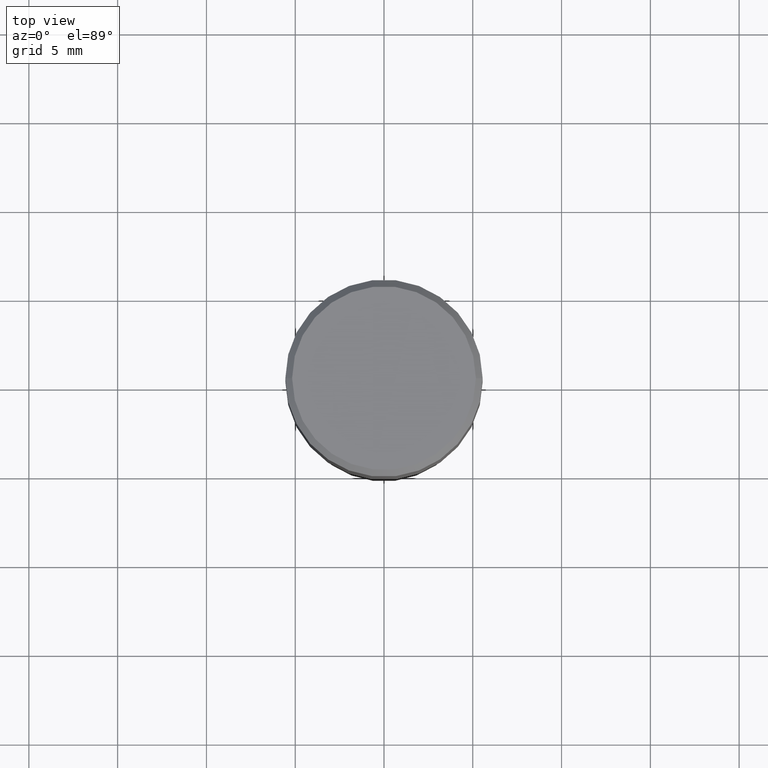
[diagram: clean part render]
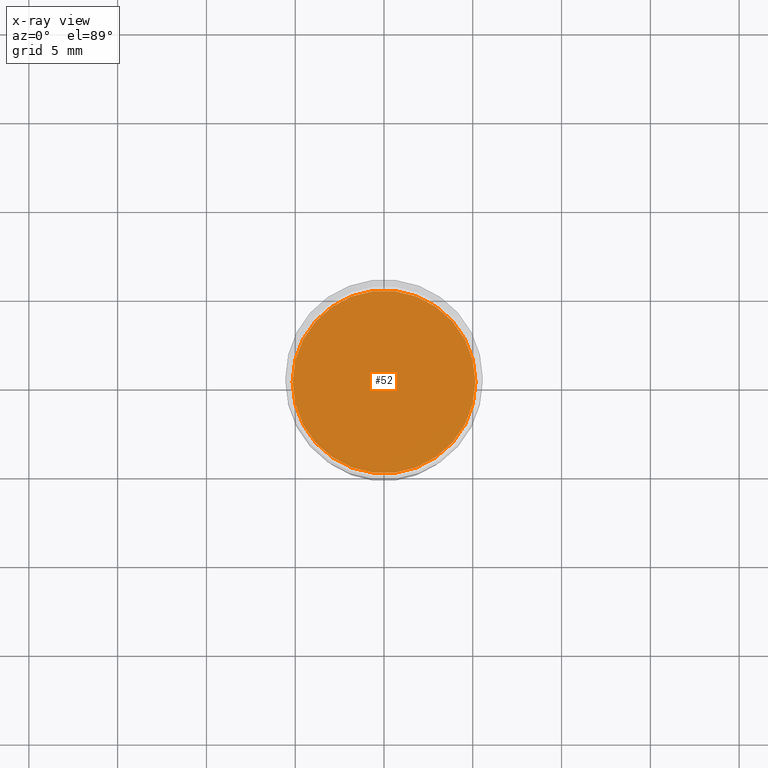
[diagram: x-ray — body ghosted, one internal face saturated and labeled with its STEP entity id]
A machine part, top view, then the same camera in x-ray: the body is ghosted and one INTERNAL B-rep face — a face not visible from any outside direction — is saturated and labeled: STEP entity #52.
In plain terms, the highlighted planar face has unit normal (-0, 0, 1).
Its self-contained STEP definition (entity closure, byte-faithful):
#18 = CIRCLE ( 'NONE', #320, 0.2026000000000000023 ) ;
#26 = DIRECTION ( 'NONE',  ( -2.445468806185136597E-29, 3.491481338843145583E-15, 1.000000000000000000 ) ) ;
#52 = ADVANCED_FACE ( 'NONE', ( #56 ), #303, .F. ) ;
#56 = FACE_OUTER_BOUND ( 'NONE', #110, .T. ) ;
#59 = CARTESIAN_POINT ( 'NONE',  ( 1.222734403092568719E-29, -1.745740669421573186E-15, -0.5000000000000001110 ) ) ;
#110 = EDGE_LOOP ( 'NONE', ( #158, #371 ) ) ;
#133 = DIRECTION ( 'NONE',  ( -2.445468806185136597E-29, 3.491481338843145583E-15, 1.000000000000000000 ) ) ;
#148 = VERTEX_POINT ( 'NONE', #330 ) ;
#158 = ORIENTED_EDGE ( 'NONE', *, *, #326, .F. ) ;
#165 = DIRECTION ( 'NONE',  ( 1.000000000000000000, -6.982962677686268288E-15, 0.000000000000000000 ) ) ;
#167 = CARTESIAN_POINT ( 'NONE',  ( 1.222734403092568719E-29, -1.745740669421573186E-15, -0.5000000000000001110 ) ) ;
#197 = DIRECTION ( 'NONE',  ( -2.438088387897960049E-29, 3.491481338843145188E-15, 1.000000000000000000 ) ) ;
#204 = CIRCLE ( 'NONE', #353, 0.2026000000000000023 ) ;
#211 = AXIS2_PLACEMENT_3D ( 'NONE', #167, #197, #342 ) ;
#252 = VERTEX_POINT ( 'NONE', #306 ) ;
#286 = EDGE_CURVE ( 'NONE', #252, #148, #18, .T. ) ;
#295 = DIRECTION ( 'NONE',  ( 1.000000000000000000, -6.982962677686268288E-15, 0.000000000000000000 ) ) ;
#303 = PLANE ( 'NONE',  #211 ) ;
#306 = CARTESIAN_POINT ( 'NONE',  ( -0.2026000000000000023, -3.035318595974993861E-16, -0.5000000000000001110 ) ) ;
#320 = AXIS2_PLACEMENT_3D ( 'NONE', #338, #26, #295 ) ;
#326 = EDGE_CURVE ( 'NONE', #148, #252, #204, .T. ) ;
#330 = CARTESIAN_POINT ( 'NONE',  ( 0.2026000000000000023, -3.160488907920811151E-15, -0.5000000000000001110 ) ) ;
#338 = CARTESIAN_POINT ( 'NONE',  ( 1.222734403092568719E-29, -1.745740669421573186E-15, -0.5000000000000001110 ) ) ;
#342 = DIRECTION ( 'NONE',  ( 1.000000000000000000, -6.982962677686265922E-15, 4.876176775795935793E-29 ) ) ;
#353 = AXIS2_PLACEMENT_3D ( 'NONE', #59, #133, #165 ) ;
#371 = ORIENTED_EDGE ( 'NONE', *, *, #286, .F. ) ;